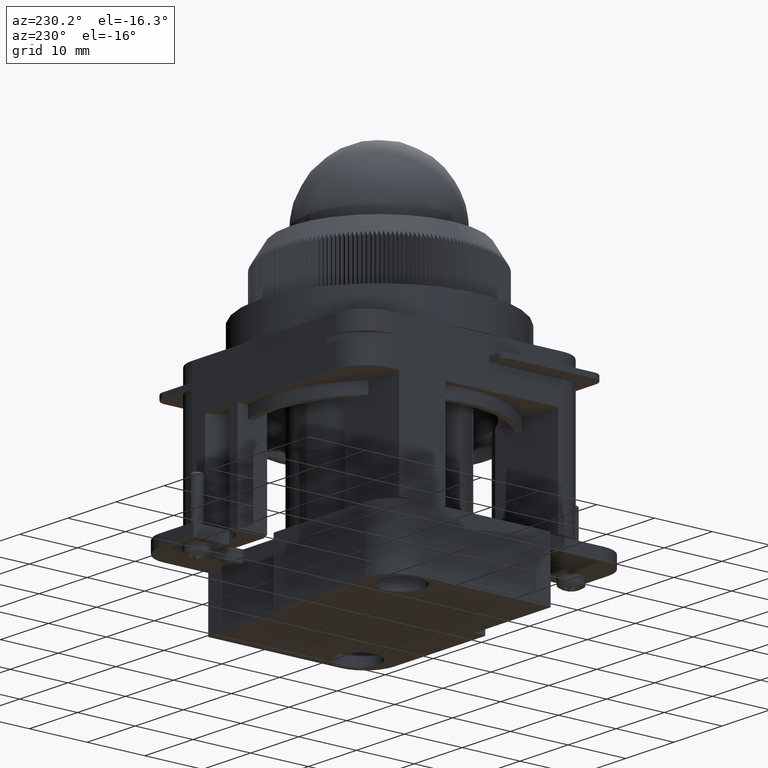
[diagram: clean part render]
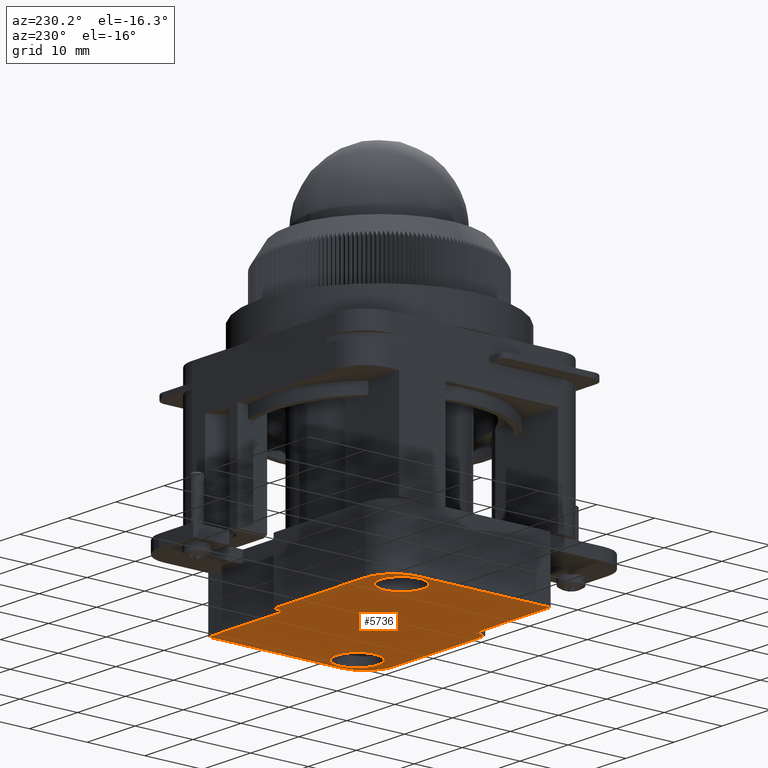
[diagram: same view with one face highlighted and labeled with its STEP entity id]
A machine part, auxiliary view. The second image highlights one B-rep face of the part: STEP entity #5736.
In plain terms, the highlighted planar face has unit normal (0, 0, -1).
Its self-contained STEP definition (entity closure, byte-faithful):
#4649=CARTESIAN_POINT('',(2.385481237813947,-17.315968312032723,10.500000000000000));
#4650=VERTEX_POINT('',#4649);
#4651=CARTESIAN_POINT('',(-1.239518762186054,-17.315968312032723,10.500000000000000));
#4652=DIRECTION('',(0.0,0.0,-1.0));
#4653=DIRECTION('',(1.0,0.0,0.0));
#4654=AXIS2_PLACEMENT_3D('',#4651,#4652,#4653);
#4655=CIRCLE('',#4654,3.625000000000000);
#4656=EDGE_CURVE('',#4650,#4650,#4655,.T.);
#4718=CARTESIAN_POINT('',(-16.114518762186048,14.184031687967188,10.500000000000000));
#4719=VERTEX_POINT('',#4718);
#4720=CARTESIAN_POINT('',(-19.739518762186048,14.184031687967188,10.500000000000000));
#4721=DIRECTION('',(0.0,0.0,-1.0));
#4722=DIRECTION('',(1.0,0.0,0.0));
#4723=AXIS2_PLACEMENT_3D('',#4720,#4721,#4722);
#4724=CIRCLE('',#4723,3.625000000000000);
#4725=EDGE_CURVE('',#4719,#4719,#4724,.T.);
#5313=CARTESIAN_POINT('',(2.510481237813957,18.434031687967234,10.500000000000000));
#5314=VERTEX_POINT('',#5313);
#5321=CARTESIAN_POINT('',(2.510481237813959,2.434031687967240,10.500000000000000));
#5322=VERTEX_POINT('',#5321);
#5323=CARTESIAN_POINT('',(2.510481237813957,18.434031687967234,10.500000000000000));
#5324=DIRECTION('',(0.0,-1.0,0.0));
#5325=VECTOR('',#5324,15.999999999999995);
#5326=LINE('',#5323,#5325);
#5327=EDGE_CURVE('',#5314,#5322,#5326,.T.);
#5388=CARTESIAN_POINT('',(4.510481237813960,2.434031687967240,10.500000000000000));
#5389=VERTEX_POINT('',#5388);
#5390=CARTESIAN_POINT('',(2.510481237813959,2.434031687967240,10.500000000000000));
#5391=DIRECTION('',(1.0,0.0,0.0));
#5392=VECTOR('',#5391,2.000000000000001);
#5393=LINE('',#5390,#5392);
#5394=EDGE_CURVE('',#5322,#5389,#5393,.T.);
#5419=CARTESIAN_POINT('',(4.510481237813961,-16.565968312032769,10.500000000000000));
#5420=VERTEX_POINT('',#5419);
#5421=CARTESIAN_POINT('',(4.510481237813960,2.434031687967240,10.500000000000000));
#5422=DIRECTION('',(0.0,-1.0,0.0));
#5423=VECTOR('',#5422,19.000000000000007);
#5424=LINE('',#5421,#5423);
#5425=EDGE_CURVE('',#5389,#5420,#5424,.T.);
#5450=CARTESIAN_POINT('',(-0.489518762186037,-21.565968312032766,10.500000000000000));
#5451=VERTEX_POINT('',#5450);
#5452=CARTESIAN_POINT('',(-0.489518762186035,-16.565968312032769,10.500000000000000));
#5453=DIRECTION('',(0.0,0.0,-1.0));
#5454=DIRECTION('',(0.0,-1.0,0.0));
#5455=AXIS2_PLACEMENT_3D('',#5452,#5453,#5454);
#5456=CIRCLE('',#5455,4.999999999999996);
#5457=EDGE_CURVE('',#5420,#5451,#5456,.T.);
#5483=CARTESIAN_POINT('',(-23.489518762186037,-21.565968312032773,10.500000000000000));
#5484=VERTEX_POINT('',#5483);
#5485=CARTESIAN_POINT('',(-0.489518762186037,-21.565968312032766,10.500000000000000));
#5486=DIRECTION('',(-1.0,0.0,0.0));
#5487=VECTOR('',#5486,23.0);
#5488=LINE('',#5485,#5487);
#5489=EDGE_CURVE('',#5451,#5484,#5488,.T.);
#5522=CARTESIAN_POINT('',(-23.489518762186044,-5.565968312032767,10.500000000000000));
#5523=VERTEX_POINT('',#5522);
#5524=CARTESIAN_POINT('',(-23.489518762186037,-21.565968312032773,10.500000000000000));
#5525=DIRECTION('',(0.0,1.0,0.0));
#5526=VECTOR('',#5525,16.000000000000007);
#5527=LINE('',#5524,#5526);
#5528=EDGE_CURVE('',#5484,#5523,#5527,.T.);
#5554=CARTESIAN_POINT('',(-25.489518762186041,-5.565968312032767,10.500000000000000));
#5555=VERTEX_POINT('',#5554);
#5556=CARTESIAN_POINT('',(-23.489518762186044,-5.565968312032767,10.500000000000000));
#5557=DIRECTION('',(-1.0,0.0,0.0));
#5558=VECTOR('',#5557,1.999999999999996);
#5559=LINE('',#5556,#5558);
#5560=EDGE_CURVE('',#5523,#5555,#5559,.T.);
#5585=CARTESIAN_POINT('',(-25.489518762186052,13.434031687967236,10.500000000000000));
#5586=VERTEX_POINT('',#5585);
#5587=CARTESIAN_POINT('',(-25.489518762186041,-5.565968312032767,10.500000000000000));
#5588=DIRECTION('',(0.0,1.0,0.0));
#5589=VECTOR('',#5588,19.000000000000004);
#5590=LINE('',#5587,#5589);
#5591=EDGE_CURVE('',#5555,#5586,#5590,.T.);
#5616=CARTESIAN_POINT('',(-20.489518762186044,18.434031687967234,10.500000000000000));
#5617=VERTEX_POINT('',#5616);
#5618=CARTESIAN_POINT('',(-20.489518762186041,13.434031687967227,10.500000000000000));
#5619=DIRECTION('',(0.0,0.0,-1.0));
#5620=DIRECTION('',(0.0,1.0,0.0));
#5621=AXIS2_PLACEMENT_3D('',#5618,#5619,#5620);
#5622=CIRCLE('',#5621,5.000000000000009);
#5623=EDGE_CURVE('',#5586,#5617,#5622,.T.);
#5649=CARTESIAN_POINT('',(-20.489518762186044,18.434031687967234,10.500000000000000));
#5650=DIRECTION('',(1.0,0.0,0.0));
#5651=VECTOR('',#5650,23.0);
#5652=LINE('',#5649,#5651);
#5653=EDGE_CURVE('',#5617,#5314,#5652,.T.);
#5713=CARTESIAN_POINT('',(-10.489518762186041,-1.565968312032767,10.500000000000000));
#5714=DIRECTION('',(0.0,0.0,1.0));
#5715=DIRECTION('',(1.0,0.0,0.0));
#5716=AXIS2_PLACEMENT_3D('',#5713,#5714,#5715);
#5717=PLANE('',#5716);
#5718=ORIENTED_EDGE('',*,*,#5394,.F.);
#5719=ORIENTED_EDGE('',*,*,#5327,.F.);
#5720=ORIENTED_EDGE('',*,*,#5653,.F.);
#5721=ORIENTED_EDGE('',*,*,#5623,.F.);
#5722=ORIENTED_EDGE('',*,*,#5591,.F.);
#5723=ORIENTED_EDGE('',*,*,#5560,.F.);
#5724=ORIENTED_EDGE('',*,*,#5528,.F.);
#5725=ORIENTED_EDGE('',*,*,#5489,.F.);
#5726=ORIENTED_EDGE('',*,*,#5457,.F.);
#5727=ORIENTED_EDGE('',*,*,#5425,.F.);
#5728=EDGE_LOOP('',(#5718,#5719,#5720,#5721,#5722,#5723,#5724,#5725,#5726,#5727));
#5729=FACE_OUTER_BOUND('',#5728,.T.);
#5730=ORIENTED_EDGE('',*,*,#4656,.T.);
#5731=EDGE_LOOP('',(#5730));
#5732=FACE_BOUND('',#5731,.T.);
#5733=ORIENTED_EDGE('',*,*,#4725,.T.);
#5734=EDGE_LOOP('',(#5733));
#5735=FACE_BOUND('',#5734,.T.);
#5736=ADVANCED_FACE('',(#5729,#5732,#5735),#5717,.T.);